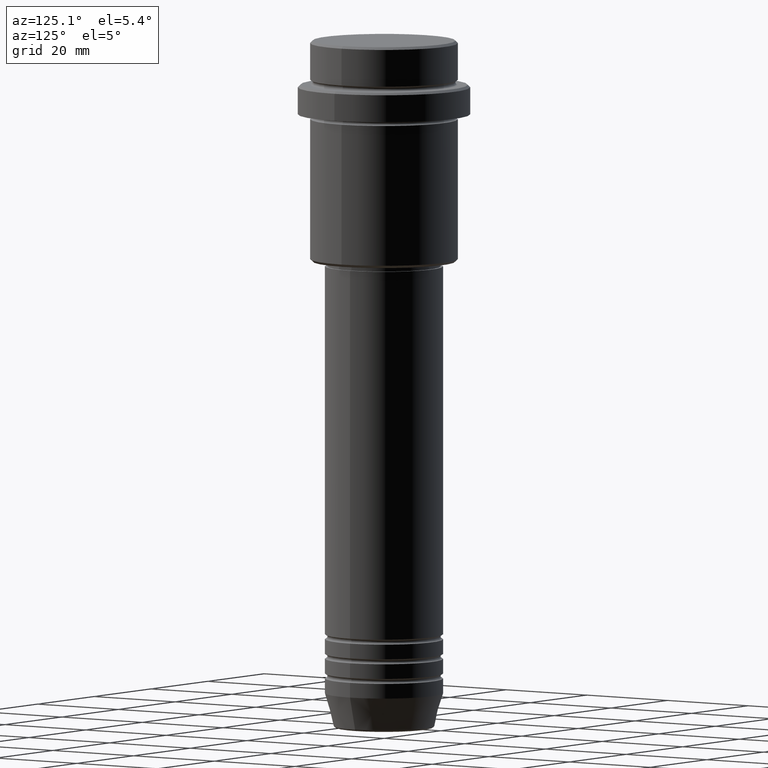
[diagram: clean part render]
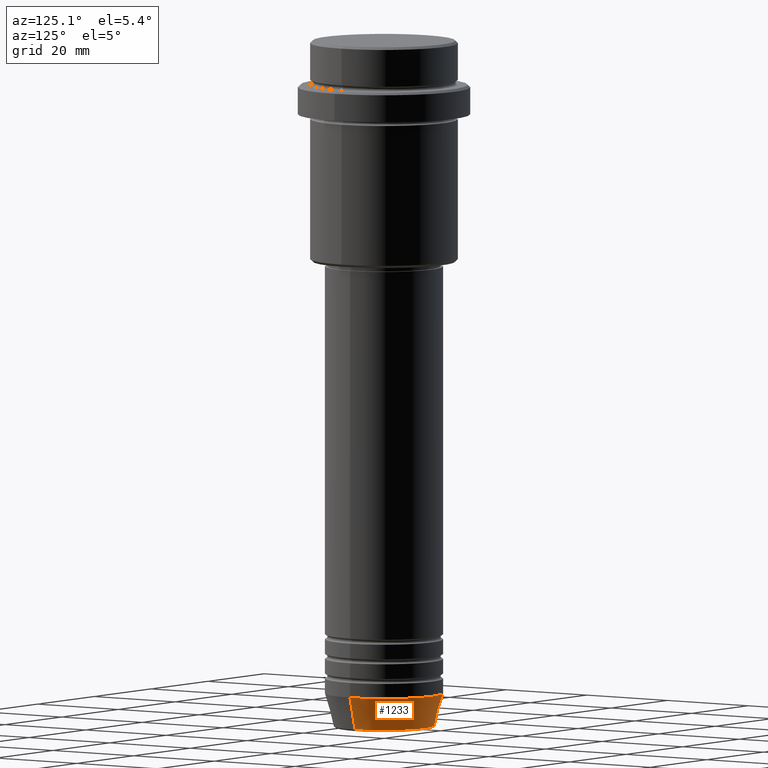
[diagram: same view with one face highlighted and labeled with its STEP entity id]
A machine part, auxiliary view. The second image highlights one B-rep face of the part: STEP entity #1233.
In plain terms, the highlighted conical surface has half-angle 15 deg.
Its self-contained STEP definition (entity closure, byte-faithful):
#17 = EDGE_CURVE ( 'NONE', #507, #1167, #1415, .T. ) ;
#118 = EDGE_CURVE ( 'NONE', #507, #333, #818, .T. ) ;
#183 = CARTESIAN_POINT ( 'NONE',  ( -10.22365507213719127, 1.360806402472382744E-15, -139.6294095225512706 ) ) ;
#244 = DIRECTION ( 'NONE',  ( 1.000000000000000000, 0.000000000000000000, 0.000000000000000000 ) ) ;
#272 = ORIENTED_EDGE ( 'NONE', *, *, #118, .T. ) ;
#300 = ORIENTED_EDGE ( 'NONE', *, *, #17, .F. ) ;
#333 = VERTEX_POINT ( 'NONE', #183 ) ;
#414 = CARTESIAN_POINT ( 'NONE',  ( 12.00000000000000000, 0.000000000000000000, -133.0000000000000000 ) ) ;
#442 = CARTESIAN_POINT ( 'NONE',  ( 12.00000000000000000, 0.000000000000000000, -133.0000000000000000 ) ) ;
#444 = CARTESIAN_POINT ( 'NONE',  ( -12.00000000000000000, 1.469576158976823947E-15, -133.0000000000000000 ) ) ;
#490 = CARTESIAN_POINT ( 'NONE',  ( 0.000000000000000000, 0.000000000000000000, -139.6294095225512706 ) ) ;
#507 = VERTEX_POINT ( 'NONE', #534 ) ;
#525 = AXIS2_PLACEMENT_3D ( 'NONE', #490, #999, #244 ) ;
#534 = CARTESIAN_POINT ( 'NONE',  ( 10.22365507213719127, 0.000000000000000000, -139.6294095225512706 ) ) ;
#561 = VERTEX_POINT ( 'NONE', #1129 ) ;
#617 = DIRECTION ( 'NONE',  ( 1.000000000000000000, 0.000000000000000000, 0.000000000000000000 ) ) ;
#728 = CIRCLE ( 'NONE', #1224, 12.00000000000000000 ) ;
#731 = ORIENTED_EDGE ( 'NONE', *, *, #1371, .T. ) ;
#733 = CARTESIAN_POINT ( 'NONE',  ( 0.000000000000000000, 0.000000000000000000, -133.0000000000000000 ) ) ;
#818 = CIRCLE ( 'NONE', #525, 10.22365507213719127 ) ;
#878 = LINE ( 'NONE', #444, #1006 ) ;
#952 = FACE_OUTER_BOUND ( 'NONE', #1198, .T. ) ;
#972 = CARTESIAN_POINT ( 'NONE',  ( 0.000000000000000000, 0.000000000000000000, -133.0000000000000000 ) ) ;
#985 = DIRECTION ( 'NONE',  ( -0.2588190451025213501, 3.169619151431772337E-17, 0.9659258262890680902 ) ) ;
#999 = DIRECTION ( 'NONE',  ( -0.000000000000000000, -0.000000000000000000, 1.000000000000000000 ) ) ;
#1006 = VECTOR ( 'NONE', #985, 1000.000000000000000 ) ;
#1083 = DIRECTION ( 'NONE',  ( -0.000000000000000000, -0.000000000000000000, 1.000000000000000000 ) ) ;
#1093 = ORIENTED_EDGE ( 'NONE', *, *, #1258, .F. ) ;
#1106 = CONICAL_SURFACE ( 'NONE', #1128, 12.00000000000000000, 0.2617993877991500740 ) ;
#1128 = AXIS2_PLACEMENT_3D ( 'NONE', #733, #1394, #617 ) ;
#1129 = CARTESIAN_POINT ( 'NONE',  ( -12.00000000000000000, 1.469576158976823947E-15, -133.0000000000000000 ) ) ;
#1162 = DIRECTION ( 'NONE',  ( 1.000000000000000000, 0.000000000000000000, 0.000000000000000000 ) ) ;
#1167 = VERTEX_POINT ( 'NONE', #414 ) ;
#1198 = EDGE_LOOP ( 'NONE', ( #272, #731, #1093, #300 ) ) ;
#1224 = AXIS2_PLACEMENT_3D ( 'NONE', #972, #1083, #1162 ) ;
#1233 = ADVANCED_FACE ( 'NONE', ( #952 ), #1106, .T. ) ;
#1258 = EDGE_CURVE ( 'NONE', #1167, #561, #728, .T. ) ;
#1302 = DIRECTION ( 'NONE',  ( 0.2588190451025213501, 0.000000000000000000, 0.9659258262890680902 ) ) ;
#1371 = EDGE_CURVE ( 'NONE', #333, #561, #878, .T. ) ;
#1375 = VECTOR ( 'NONE', #1302, 1000.000000000000000 ) ;
#1394 = DIRECTION ( 'NONE',  ( -0.000000000000000000, -0.000000000000000000, 1.000000000000000000 ) ) ;
#1415 = LINE ( 'NONE', #442, #1375 ) ;